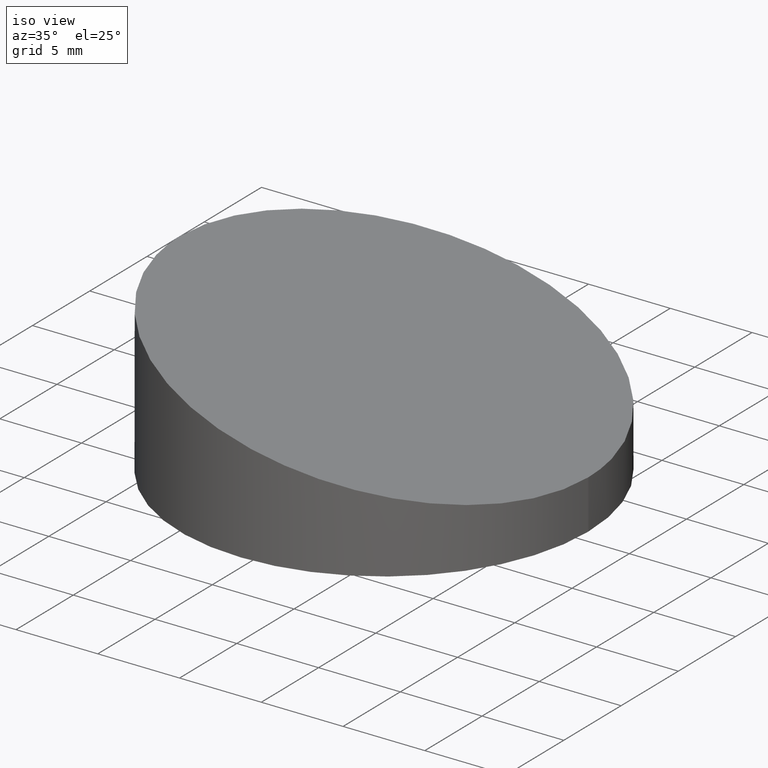
[diagram: clean part render]
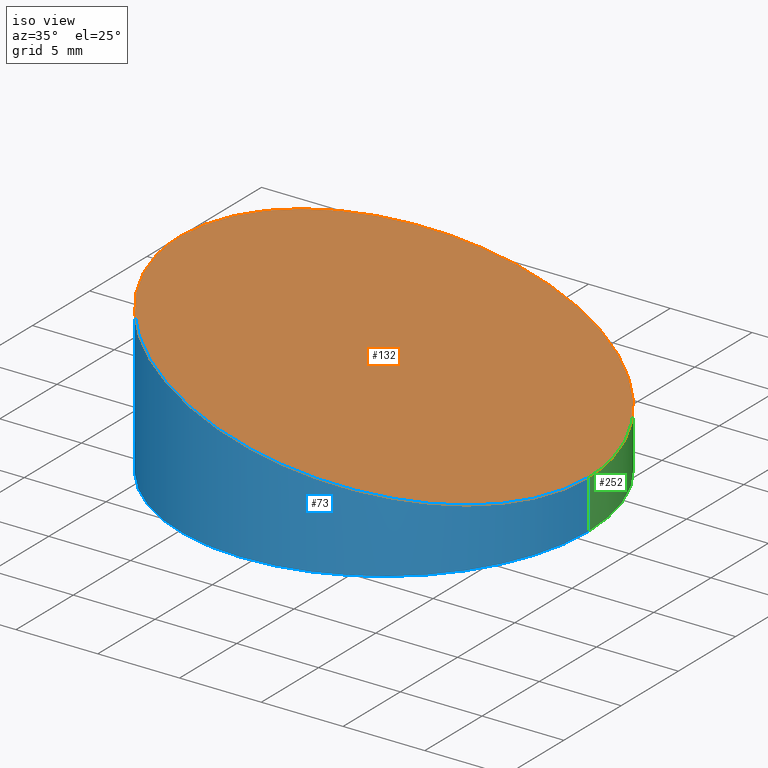
[diagram: same view with three faces highlighted in distinct colors, each labeled with its STEP entity id]
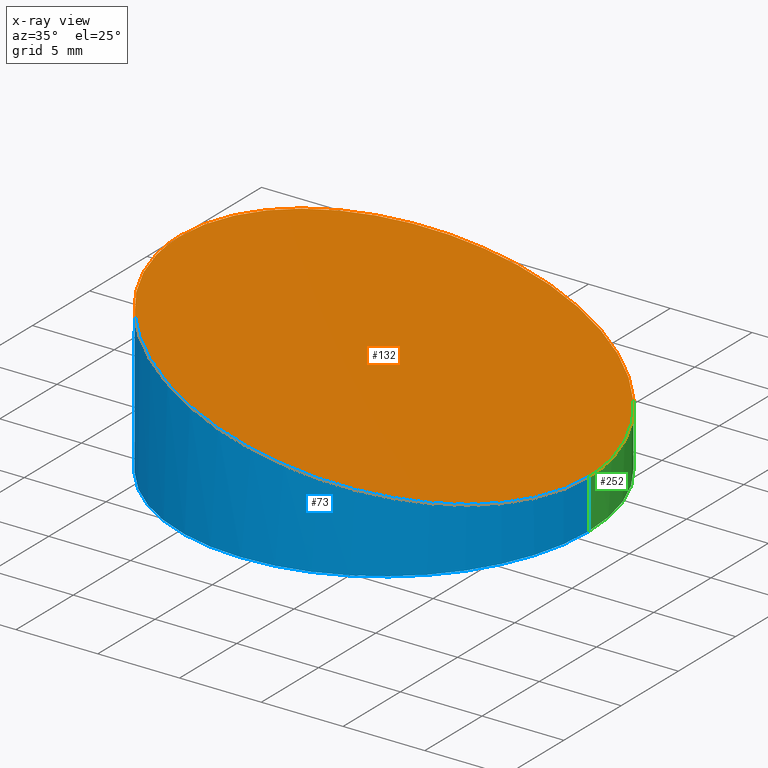
[diagram: x-ray of the same camera — body ghosted, the three highlighted faces saturated]
A machine part, iso view with three faces highlighted in distinct colors.
The next image is the same camera in x-ray (body ghosted, the three faces saturated) — at least one of them is partly hidden behind the body in this view.
Their STEP definitions:

[orange] entity #132 — the highlighted planar face has unit normal (-0.2563, 0, -0.9666).
#5 = VERTEX_POINT ( 'NONE', #26 ) ;
#8 = ORIENTED_EDGE ( 'NONE', *, *, #135, .F. ) ;
#10 = CARTESIAN_POINT ( 'NONE',  ( -12.49999999999999500, -24.99999999999998900, 9.628629890433083800 ) ) ;
#26 = CARTESIAN_POINT ( 'NONE',  ( -12.49999999999999600, 0.0000000000000000000, 9.628629890433083800 ) ) ;
#27 =( BOUNDED_CURVE ( )  B_SPLINE_CURVE ( 3, ( #82, #214, #63, #179 ),
 .UNSPECIFIED., .F., .F. ) 
 B_SPLINE_CURVE_WITH_KNOTS ( ( 4, 4 ),
 ( 3.141592653589793100, 6.283185307179586200 ),
 .UNSPECIFIED. ) 
 CURVE ( )  GEOMETRIC_REPRESENTATION_ITEM ( )  RATIONAL_B_SPLINE_CURVE ( ( 1.000000000000000000, 0.3333333333333333700, 0.3333333333333333700, 1.000000000000000000 ) ) 
 REPRESENTATION_ITEM ( '' )  );
#29 = EDGE_LOOP ( 'NONE', ( #8, #101 ) ) ;
#30 = DIRECTION ( 'NONE',  ( -0.2562893731329976000, 0.0000000000000000000, -0.9666001020169070500 ) ) ;
#36 = AXIS2_PLACEMENT_3D ( 'NONE', #160, #30, #83 ) ;
#63 = CARTESIAN_POINT ( 'NONE',  ( 12.50000000000000000, 24.99999999999998900, 2.999999999999999600 ) ) ;
#65 = CARTESIAN_POINT ( 'NONE',  ( 12.49999999999999600, 1.530808498934191100E-015, 3.000000000000000000 ) ) ;
#82 = CARTESIAN_POINT ( 'NONE',  ( -12.49999999999999600, 0.0000000000000000000, 9.628629890433083800 ) ) ;
#83 = DIRECTION ( 'NONE',  ( -0.9666001020169070500, 0.0000000000000000000, 0.2562893731329976000 ) ) ;
#101 = ORIENTED_EDGE ( 'NONE', *, *, #128, .F. ) ;
#105 = CARTESIAN_POINT ( 'NONE',  ( -12.49999999999999600, 0.0000000000000000000, 9.628629890433083800 ) ) ;
#124 = CARTESIAN_POINT ( 'NONE',  ( 12.50000000000000000, -24.99999999999998900, 2.999999999999999600 ) ) ;
#128 = EDGE_CURVE ( 'NONE', #162, #5, #186, .T. ) ;
#132 = ADVANCED_FACE ( 'NONE', ( #213 ), #216, .F. ) ;
#135 = EDGE_CURVE ( 'NONE', #5, #162, #27, .T. ) ;
#160 = CARTESIAN_POINT ( 'NONE',  ( 12.49999999999999600, -25.00000000000000000, 3.000000000000000000 ) ) ;
#162 = VERTEX_POINT ( 'NONE', #65 ) ;
#179 = CARTESIAN_POINT ( 'NONE',  ( 12.49999999999999600, 1.530808498934191100E-015, 3.000000000000000000 ) ) ;
#186 =( BOUNDED_CURVE ( )  B_SPLINE_CURVE ( 3, ( #241, #124, #10, #105 ),
 .UNSPECIFIED., .F., .T. ) 
 B_SPLINE_CURVE_WITH_KNOTS ( ( 4, 4 ),
 ( 0.0000000000000000000, 3.141592653589793100 ),
 .UNSPECIFIED. ) 
 CURVE ( )  GEOMETRIC_REPRESENTATION_ITEM ( )  RATIONAL_B_SPLINE_CURVE ( ( 1.000000000000000000, 0.3333333333333333700, 0.3333333333333333700, 1.000000000000000000 ) ) 
 REPRESENTATION_ITEM ( '' )  );
#213 = FACE_OUTER_BOUND ( 'NONE', #29, .T. ) ;
#214 = CARTESIAN_POINT ( 'NONE',  ( -12.50000000000000000, 24.99999999999998900, 9.628629890433083800 ) ) ;
#216 = PLANE ( 'NONE',  #36 ) ;
#241 = CARTESIAN_POINT ( 'NONE',  ( 12.49999999999999600, 1.530808498934191100E-015, 3.000000000000000000 ) ) ;

[blue] entity #73 — the highlighted cylindrical surface (partial cylindrical patch) has radius 12.5 mm, axis along (-0, -0, -1).
#3 = EDGE_CURVE ( 'NONE', #5, #48, #141, .T. ) ;
#5 = VERTEX_POINT ( 'NONE', #26 ) ;
#10 = CARTESIAN_POINT ( 'NONE',  ( -12.49999999999999500, -24.99999999999998900, 9.628629890433083800 ) ) ;
#26 = CARTESIAN_POINT ( 'NONE',  ( -12.49999999999999600, 0.0000000000000000000, 9.628629890433083800 ) ) ;
#45 = ORIENTED_EDGE ( 'NONE', *, *, #128, .T. ) ;
#48 = VERTEX_POINT ( 'NONE', #234 ) ;
#49 = DIRECTION ( 'NONE',  ( 1.000000000000000000, 0.0000000000000000000, 0.0000000000000000000 ) ) ;
#50 = FACE_OUTER_BOUND ( 'NONE', #62, .T. ) ;
#54 = ORIENTED_EDGE ( 'NONE', *, *, #211, .F. ) ;
#56 = ORIENTED_EDGE ( 'NONE', *, *, #3, .T. ) ;
#61 = DIRECTION ( 'NONE',  ( 0.0000000000000000000, 0.0000000000000000000, 1.000000000000000000 ) ) ;
#62 = EDGE_LOOP ( 'NONE', ( #54, #45, #56, #154 ) ) ;
#65 = CARTESIAN_POINT ( 'NONE',  ( 12.49999999999999600, 1.530808498934191100E-015, 3.000000000000000000 ) ) ;
#69 = EDGE_CURVE ( 'NONE', #48, #215, #148, .T. ) ;
#73 = ADVANCED_FACE ( 'NONE', ( #50 ), #166, .T. ) ;
#80 = CARTESIAN_POINT ( 'NONE',  ( -12.49999999999999600, 0.0000000000000000000, 10.00000000000000000 ) ) ;
#84 = AXIS2_PLACEMENT_3D ( 'NONE', #86, #61, #49 ) ;
#86 = CARTESIAN_POINT ( 'NONE',  ( 0.0000000000000000000, 0.0000000000000000000, 0.0000000000000000000 ) ) ;
#97 = AXIS2_PLACEMENT_3D ( 'NONE', #102, #159, #181 ) ;
#102 = CARTESIAN_POINT ( 'NONE',  ( 0.0000000000000000000, 0.0000000000000000000, 10.00000000000000000 ) ) ;
#103 = CARTESIAN_POINT ( 'NONE',  ( 12.49999999999999600, 1.530808498934191100E-015, 10.00000000000000000 ) ) ;
#105 = CARTESIAN_POINT ( 'NONE',  ( -12.49999999999999600, 0.0000000000000000000, 9.628629890433083800 ) ) ;
#114 = LINE ( 'NONE', #103, #204 ) ;
#117 = DIRECTION ( 'NONE',  ( -0.0000000000000000000, -0.0000000000000000000, -1.000000000000000000 ) ) ;
#124 = CARTESIAN_POINT ( 'NONE',  ( 12.50000000000000000, -24.99999999999998900, 2.999999999999999600 ) ) ;
#128 = EDGE_CURVE ( 'NONE', #162, #5, #186, .T. ) ;
#131 = CARTESIAN_POINT ( 'NONE',  ( 12.49999999999999600, 1.530808498934191100E-015, 0.0000000000000000000 ) ) ;
#141 = LINE ( 'NONE', #80, #226 ) ;
#148 = CIRCLE ( 'NONE', #84, 12.49999999999999600 ) ;
#154 = ORIENTED_EDGE ( 'NONE', *, *, #69, .T. ) ;
#159 = DIRECTION ( 'NONE',  ( -0.0000000000000000000, -0.0000000000000000000, -1.000000000000000000 ) ) ;
#162 = VERTEX_POINT ( 'NONE', #65 ) ;
#166 = CYLINDRICAL_SURFACE ( 'NONE', #97, 12.49999999999999600 ) ;
#181 = DIRECTION ( 'NONE',  ( -1.000000000000000000, 0.0000000000000000000, 0.0000000000000000000 ) ) ;
#186 =( BOUNDED_CURVE ( )  B_SPLINE_CURVE ( 3, ( #241, #124, #10, #105 ),
 .UNSPECIFIED., .F., .T. ) 
 B_SPLINE_CURVE_WITH_KNOTS ( ( 4, 4 ),
 ( 0.0000000000000000000, 3.141592653589793100 ),
 .UNSPECIFIED. ) 
 CURVE ( )  GEOMETRIC_REPRESENTATION_ITEM ( )  RATIONAL_B_SPLINE_CURVE ( ( 1.000000000000000000, 0.3333333333333333700, 0.3333333333333333700, 1.000000000000000000 ) ) 
 REPRESENTATION_ITEM ( '' )  );
#204 = VECTOR ( 'NONE', #206, 1000.000000000000000 ) ;
#206 = DIRECTION ( 'NONE',  ( -0.0000000000000000000, -0.0000000000000000000, -1.000000000000000000 ) ) ;
#211 = EDGE_CURVE ( 'NONE', #162, #215, #114, .T. ) ;
#215 = VERTEX_POINT ( 'NONE', #131 ) ;
#226 = VECTOR ( 'NONE', #117, 1000.000000000000000 ) ;
#234 = CARTESIAN_POINT ( 'NONE',  ( -12.49999999999999600, 0.0000000000000000000, 0.0000000000000000000 ) ) ;
#241 = CARTESIAN_POINT ( 'NONE',  ( 12.49999999999999600, 1.530808498934191100E-015, 3.000000000000000000 ) ) ;

[green] entity #252 — the highlighted cylindrical surface (partial cylindrical patch) has radius 12.5 mm, axis along (-0, -0, -1).
#3 = EDGE_CURVE ( 'NONE', #5, #48, #141, .T. ) ;
#5 = VERTEX_POINT ( 'NONE', #26 ) ;
#16 = FACE_OUTER_BOUND ( 'NONE', #109, .T. ) ;
#17 = CARTESIAN_POINT ( 'NONE',  ( 0.0000000000000000000, 0.0000000000000000000, 0.0000000000000000000 ) ) ;
#26 = CARTESIAN_POINT ( 'NONE',  ( -12.49999999999999600, 0.0000000000000000000, 9.628629890433083800 ) ) ;
#27 =( BOUNDED_CURVE ( )  B_SPLINE_CURVE ( 3, ( #82, #214, #63, #179 ),
 .UNSPECIFIED., .F., .F. ) 
 B_SPLINE_CURVE_WITH_KNOTS ( ( 4, 4 ),
 ( 3.141592653589793100, 6.283185307179586200 ),
 .UNSPECIFIED. ) 
 CURVE ( )  GEOMETRIC_REPRESENTATION_ITEM ( )  RATIONAL_B_SPLINE_CURVE ( ( 1.000000000000000000, 0.3333333333333333700, 0.3333333333333333700, 1.000000000000000000 ) ) 
 REPRESENTATION_ITEM ( '' )  );
#35 = CIRCLE ( 'NONE', #43, 12.49999999999999600 ) ;
#43 = AXIS2_PLACEMENT_3D ( 'NONE', #17, #145, #70 ) ;
#48 = VERTEX_POINT ( 'NONE', #234 ) ;
#63 = CARTESIAN_POINT ( 'NONE',  ( 12.50000000000000000, 24.99999999999998900, 2.999999999999999600 ) ) ;
#65 = CARTESIAN_POINT ( 'NONE',  ( 12.49999999999999600, 1.530808498934191100E-015, 3.000000000000000000 ) ) ;
#66 = ORIENTED_EDGE ( 'NONE', *, *, #3, .F. ) ;
#70 = DIRECTION ( 'NONE',  ( 1.000000000000000000, 0.0000000000000000000, 0.0000000000000000000 ) ) ;
#80 = CARTESIAN_POINT ( 'NONE',  ( -12.49999999999999600, 0.0000000000000000000, 10.00000000000000000 ) ) ;
#82 = CARTESIAN_POINT ( 'NONE',  ( -12.49999999999999600, 0.0000000000000000000, 9.628629890433083800 ) ) ;
#90 = DIRECTION ( 'NONE',  ( -0.0000000000000000000, -0.0000000000000000000, -1.000000000000000000 ) ) ;
#95 = ORIENTED_EDGE ( 'NONE', *, *, #199, .T. ) ;
#103 = CARTESIAN_POINT ( 'NONE',  ( 12.49999999999999600, 1.530808498934191100E-015, 10.00000000000000000 ) ) ;
#109 = EDGE_LOOP ( 'NONE', ( #120, #192, #95, #66 ) ) ;
#114 = LINE ( 'NONE', #103, #204 ) ;
#117 = DIRECTION ( 'NONE',  ( -0.0000000000000000000, -0.0000000000000000000, -1.000000000000000000 ) ) ;
#120 = ORIENTED_EDGE ( 'NONE', *, *, #135, .T. ) ;
#131 = CARTESIAN_POINT ( 'NONE',  ( 12.49999999999999600, 1.530808498934191100E-015, 0.0000000000000000000 ) ) ;
#134 = CARTESIAN_POINT ( 'NONE',  ( 0.0000000000000000000, 0.0000000000000000000, 10.00000000000000000 ) ) ;
#135 = EDGE_CURVE ( 'NONE', #5, #162, #27, .T. ) ;
#141 = LINE ( 'NONE', #80, #226 ) ;
#145 = DIRECTION ( 'NONE',  ( 0.0000000000000000000, 0.0000000000000000000, 1.000000000000000000 ) ) ;
#153 = AXIS2_PLACEMENT_3D ( 'NONE', #134, #90, #247 ) ;
#162 = VERTEX_POINT ( 'NONE', #65 ) ;
#179 = CARTESIAN_POINT ( 'NONE',  ( 12.49999999999999600, 1.530808498934191100E-015, 3.000000000000000000 ) ) ;
#192 = ORIENTED_EDGE ( 'NONE', *, *, #211, .T. ) ;
#199 = EDGE_CURVE ( 'NONE', #215, #48, #35, .T. ) ;
#204 = VECTOR ( 'NONE', #206, 1000.000000000000000 ) ;
#206 = DIRECTION ( 'NONE',  ( -0.0000000000000000000, -0.0000000000000000000, -1.000000000000000000 ) ) ;
#211 = EDGE_CURVE ( 'NONE', #162, #215, #114, .T. ) ;
#214 = CARTESIAN_POINT ( 'NONE',  ( -12.50000000000000000, 24.99999999999998900, 9.628629890433083800 ) ) ;
#215 = VERTEX_POINT ( 'NONE', #131 ) ;
#226 = VECTOR ( 'NONE', #117, 1000.000000000000000 ) ;
#234 = CARTESIAN_POINT ( 'NONE',  ( -12.49999999999999600, 0.0000000000000000000, 0.0000000000000000000 ) ) ;
#238 = CYLINDRICAL_SURFACE ( 'NONE', #153, 12.49999999999999600 ) ;
#247 = DIRECTION ( 'NONE',  ( -1.000000000000000000, 0.0000000000000000000, 0.0000000000000000000 ) ) ;
#252 = ADVANCED_FACE ( 'NONE', ( #16 ), #238, .T. ) ;